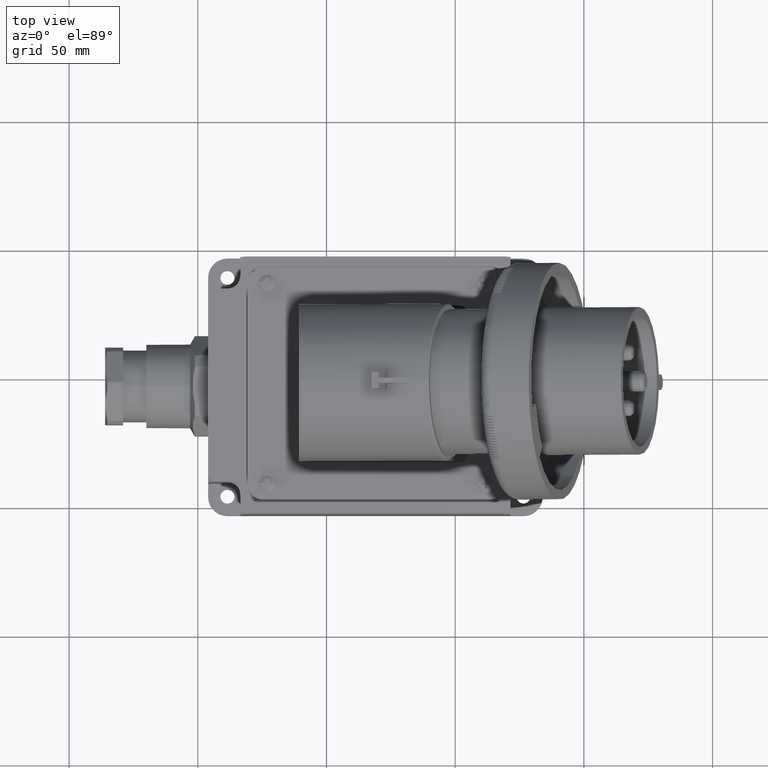
[diagram: clean part render]
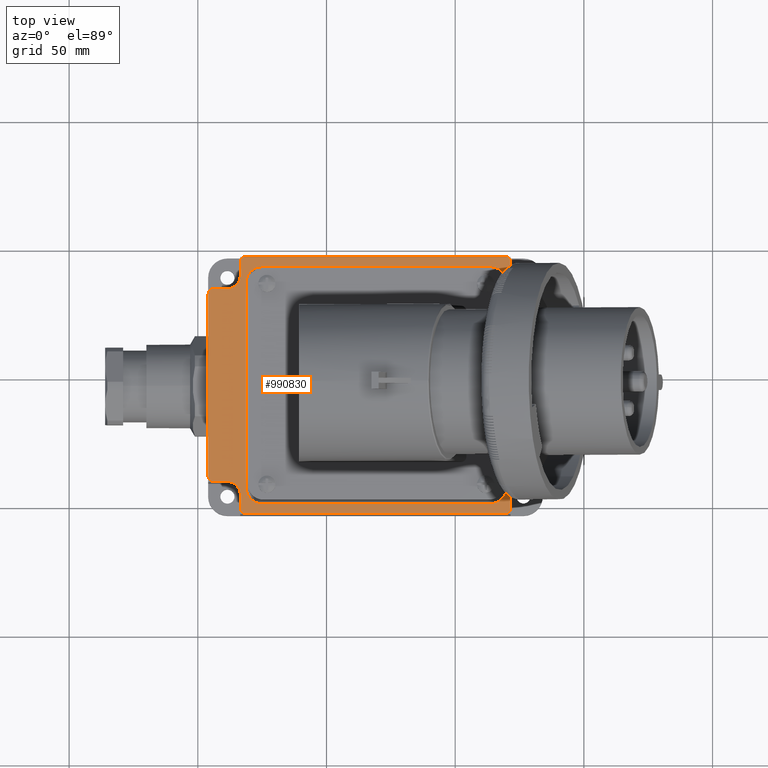
[diagram: same view with one face highlighted and labeled with its STEP entity id]
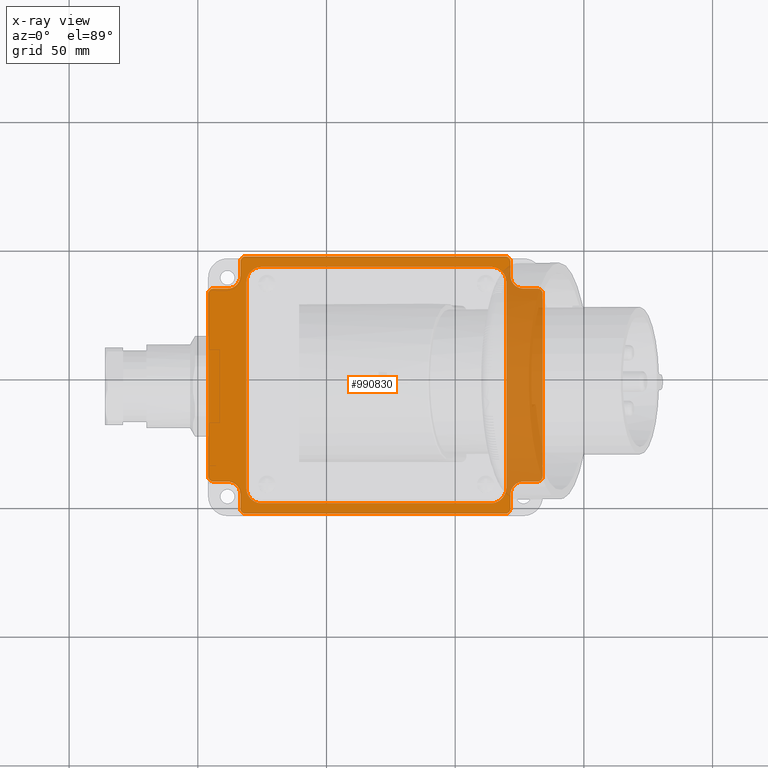
[diagram: x-ray of the same camera — body ghosted, the highlighted face saturated]
A machine part, top view. The second image highlights one B-rep face of the part: STEP entity #990830.
The next image is the same camera in x-ray: the body ghosted, the highlighted face saturated — about 35% of this face is hidden behind the body in this view.
In plain terms, the highlighted planar face has unit normal (0, 0, 1).
Its self-contained STEP definition (entity closure, byte-faithful):
#16690=CARTESIAN_POINT('',(69.,1.,51.8));
#16700=DIRECTION('',(-1.,0.,0.));
#16710=VECTOR('',#16700,1.);
#16720=LINE('',#16690,#16710);
#16730=CARTESIAN_POINT('',(113.851106427618,1.,51.8));
#16740=VERTEX_POINT('',#16730);
#16750=CARTESIAN_POINT('',(24.8511064276178,1.,51.8));
#16760=VERTEX_POINT('',#16750);
#16770=EDGE_CURVE('',#16740,#16760,#16720,.T.);
#17220=CARTESIAN_POINT('',(16.5,89.5,51.8));
#17230=VERTEX_POINT('',#17220);
#17260=CARTESIAN_POINT('',(11.5,89.5,51.8));
#17270=DIRECTION('',(0.,0.,1.));
#17280=DIRECTION('',(1.,0.,0.));
#17290=AXIS2_PLACEMENT_3D('',#17260,#17270,#17280);
#17300=CIRCLE('',#17290,5.);
#17310=CARTESIAN_POINT('',(11.5,84.5,51.8));
#17320=VERTEX_POINT('',#17310);
#17330=EDGE_CURVE('',#17320,#17230,#17300,.T.);
#17660=CARTESIAN_POINT('',(69.,84.5,51.8));
#17670=DIRECTION('',(-1.,0.,0.));
#17680=VECTOR('',#17670,1.);
#17690=LINE('',#17660,#17680);
#17700=CARTESIAN_POINT('',(6.,84.5,51.8));
#17710=VERTEX_POINT('',#17700);
#17720=EDGE_CURVE('',#17320,#17710,#17690,.T.);
#18040=CARTESIAN_POINT('',(6.,82.5,51.8));
#18050=DIRECTION('',(0.,0.,-1.));
#18060=DIRECTION('',(-1.,0.,0.));
#18070=AXIS2_PLACEMENT_3D('',#18040,#18050,#18060);
#18080=CIRCLE('',#18070,2.);
#18090=CARTESIAN_POINT('',(4.,82.5,51.8));
#18100=VERTEX_POINT('',#18090);
#18110=EDGE_CURVE('',#18100,#17710,#18080,.T.);
#18440=CARTESIAN_POINT('',(4.,47.,51.8));
#18450=DIRECTION('',(0.,-1.,0.));
#18460=VECTOR('',#18450,1.);
#18470=LINE('',#18440,#18460);
#18480=CARTESIAN_POINT('',(4.,11.5,51.8));
#18490=VERTEX_POINT('',#18480);
#18500=EDGE_CURVE('',#18100,#18490,#18470,.T.);
#18820=CARTESIAN_POINT('',(6.,11.5,51.8));
#18830=DIRECTION('',(0.,0.,1.));
#18840=DIRECTION('',(1.,0.,0.));
#18850=AXIS2_PLACEMENT_3D('',#18820,#18830,#18840);
#18860=CIRCLE('',#18850,2.);
#18870=CARTESIAN_POINT('',(6.,9.5,51.8));
#18880=VERTEX_POINT('',#18870);
#18890=EDGE_CURVE('',#18490,#18880,#18860,.T.);
#19220=CARTESIAN_POINT('',(69.,9.5,51.8));
#19230=DIRECTION('',(1.,0.,0.));
#19240=VECTOR('',#19230,1.);
#19250=LINE('',#19220,#19240);
#19260=CARTESIAN_POINT('',(11.5,9.5,51.8));
#19270=VERTEX_POINT('',#19260);
#19280=EDGE_CURVE('',#18880,#19270,#19250,.T.);
#19600=CARTESIAN_POINT('',(11.5,4.5,51.8));
#19610=DIRECTION('',(0.,0.,1.));
#19620=DIRECTION('',(1.,0.,0.));
#19630=AXIS2_PLACEMENT_3D('',#19600,#19610,#19620);
#19640=CIRCLE('',#19630,5.);
#19650=CARTESIAN_POINT('',(16.5,4.5,51.8));
#19660=VERTEX_POINT('',#19650);
#19670=EDGE_CURVE('',#19660,#19270,#19640,.T.);
#20000=CARTESIAN_POINT('',(16.5,47.,51.8));
#20010=DIRECTION('',(0.,-1.,0.));
#20020=VECTOR('',#20010,1.);
#20030=LINE('',#20000,#20020);
#20040=CARTESIAN_POINT('',(16.5,-1.,51.8));
#20050=VERTEX_POINT('',#20040);
#20060=EDGE_CURVE('',#19660,#20050,#20030,.T.);
#20380=CARTESIAN_POINT('',(18.5,-1.,51.8));
#20390=DIRECTION('',(0.,0.,-1.));
#20400=DIRECTION('',(-1.,0.,0.));
#20410=AXIS2_PLACEMENT_3D('',#20380,#20390,#20400);
#20420=CIRCLE('',#20410,2.);
#20430=CARTESIAN_POINT('',(18.5,-3.,51.8));
#20440=VERTEX_POINT('',#20430);
#20450=EDGE_CURVE('',#20440,#20050,#20420,.T.);
#20780=CARTESIAN_POINT('',(69.,-3.,51.8));
#20790=DIRECTION('',(1.,0.,0.));
#20800=VECTOR('',#20790,1.);
#20810=LINE('',#20780,#20800);
#20820=CARTESIAN_POINT('',(119.5,-3.,51.8));
#20830=VERTEX_POINT('',#20820);
#20840=EDGE_CURVE('',#20440,#20830,#20810,.T.);
#21160=CARTESIAN_POINT('',(119.5,-1.,51.8));
#21170=DIRECTION('',(0.,0.,1.));
#21180=DIRECTION('',(1.,0.,0.));
#21190=AXIS2_PLACEMENT_3D('',#21160,#21170,#21180);
#21200=CIRCLE('',#21190,2.);
#21210=CARTESIAN_POINT('',(121.5,-1.,51.8));
#21220=VERTEX_POINT('',#21210);
#21230=EDGE_CURVE('',#20830,#21220,#21200,.T.);
#21560=CARTESIAN_POINT('',(121.5,47.,51.8));
#21570=DIRECTION('',(0.,1.,0.));
#21580=VECTOR('',#21570,1.);
#21590=LINE('',#21560,#21580);
#21600=CARTESIAN_POINT('',(121.5,4.5,51.8));
#21610=VERTEX_POINT('',#21600);
#21620=EDGE_CURVE('',#21220,#21610,#21590,.T.);
#21940=CARTESIAN_POINT('',(126.5,4.5,51.8));
#21950=DIRECTION('',(0.,0.,-1.));
#21960=DIRECTION('',(-1.,0.,0.));
#21970=AXIS2_PLACEMENT_3D('',#21940,#21950,#21960);
#21980=CIRCLE('',#21970,5.);
#21990=CARTESIAN_POINT('',(126.5,9.5,51.8));
#22000=VERTEX_POINT('',#21990);
#22010=EDGE_CURVE('',#21610,#22000,#21980,.T.);
#22340=CARTESIAN_POINT('',(69.,9.5,51.8));
#22350=DIRECTION('',(1.,0.,0.));
#22360=VECTOR('',#22350,1.);
#22370=LINE('',#22340,#22360);
#22380=CARTESIAN_POINT('',(132.,9.5,51.8));
#22390=VERTEX_POINT('',#22380);
#22400=EDGE_CURVE('',#22000,#22390,#22370,.T.);
#22720=CARTESIAN_POINT('',(132.,11.5,51.8));
#22730=DIRECTION('',(0.,0.,-1.));
#22740=DIRECTION('',(-1.,0.,0.));
#22750=AXIS2_PLACEMENT_3D('',#22720,#22730,#22740);
#22760=CIRCLE('',#22750,2.);
#22770=CARTESIAN_POINT('',(134.,11.5,51.8));
#22780=VERTEX_POINT('',#22770);
#22790=EDGE_CURVE('',#22780,#22390,#22760,.T.);
#23120=CARTESIAN_POINT('',(134.,47.,51.8));
#23130=DIRECTION('',(0.,1.,0.));
#23140=VECTOR('',#23130,1.);
#23150=LINE('',#23120,#23140);
#23160=CARTESIAN_POINT('',(134.,82.5,51.8));
#23170=VERTEX_POINT('',#23160);
#23180=EDGE_CURVE('',#22780,#23170,#23150,.T.);
#23500=CARTESIAN_POINT('',(132.,82.5,51.8));
#23510=DIRECTION('',(0.,0.,1.));
#23520=DIRECTION('',(1.,0.,0.));
#23530=AXIS2_PLACEMENT_3D('',#23500,#23510,#23520);
#23540=CIRCLE('',#23530,2.);
#23550=CARTESIAN_POINT('',(132.,84.5,51.8));
#23560=VERTEX_POINT('',#23550);
#23570=EDGE_CURVE('',#23170,#23560,#23540,.T.);
#23900=CARTESIAN_POINT('',(69.,84.5,51.8));
#23910=DIRECTION('',(-1.,0.,0.));
#23920=VECTOR('',#23910,1.);
#23930=LINE('',#23900,#23920);
#23940=CARTESIAN_POINT('',(126.5,84.5,51.8));
#23950=VERTEX_POINT('',#23940);
#23960=EDGE_CURVE('',#23560,#23950,#23930,.T.);
#24280=CARTESIAN_POINT('',(126.5,89.5,51.8));
#24290=DIRECTION('',(0.,0.,-1.));
#24300=DIRECTION('',(-1.,0.,0.));
#24310=AXIS2_PLACEMENT_3D('',#24280,#24290,#24300);
#24320=CIRCLE('',#24310,5.);
#24330=CARTESIAN_POINT('',(121.5,89.5,51.8));
#24340=VERTEX_POINT('',#24330);
#24350=EDGE_CURVE('',#23950,#24340,#24320,.T.);
#24680=CARTESIAN_POINT('',(121.5,47.,51.8));
#24690=DIRECTION('',(3.94745964311167E-16,1.,0.));
#24700=VECTOR('',#24690,1.);
#24710=LINE('',#24680,#24700);
#24720=CARTESIAN_POINT('',(121.5,95.,51.8));
#24730=VERTEX_POINT('',#24720);
#24740=EDGE_CURVE('',#24340,#24730,#24710,.T.);
#25110=CARTESIAN_POINT('',(119.5,97.,51.8));
#25120=VERTEX_POINT('',#25110);
#25150=CARTESIAN_POINT('',(69.,97.,51.8));
#25160=DIRECTION('',(-1.,0.,0.));
#25170=VECTOR('',#25160,1.);
#25180=LINE('',#25150,#25170);
#25190=CARTESIAN_POINT('',(18.5,97.,51.8));
#25200=VERTEX_POINT('',#25190);
#25210=EDGE_CURVE('',#25120,#25200,#25180,.T.);
#25530=CARTESIAN_POINT('',(18.5,95.,51.8));
#25540=DIRECTION('',(0.,0.,1.));
#25550=DIRECTION('',(1.,0.,0.));
#25560=AXIS2_PLACEMENT_3D('',#25530,#25540,#25550);
#25570=CIRCLE('',#25560,2.);
#25580=CARTESIAN_POINT('',(16.5,95.,51.8));
#25590=VERTEX_POINT('',#25580);
#25600=EDGE_CURVE('',#25200,#25590,#25570,.T.);
#25930=CARTESIAN_POINT('',(16.5,47.,51.8));
#25940=DIRECTION('',(3.94745964311167E-16,-1.,0.));
#25950=VECTOR('',#25940,1.);
#25960=LINE('',#25930,#25950);
#25970=EDGE_CURVE('',#25590,#17230,#25960,.T.);
#989720=CARTESIAN_POINT('',(119.5,95.,51.8));
#989730=DIRECTION('',(0.,0.,-1.));
#989740=DIRECTION('',(-1.,0.,0.));
#989750=AXIS2_PLACEMENT_3D('',#989720,#989730,#989740);
#989760=CIRCLE('',#989750,2.);
#989770=EDGE_CURVE('',#25120,#24730,#989760,.T.);
#989910=CARTESIAN_POINT('',(69.,47.,51.8));
#989920=DIRECTION('',(0.,0.,1.));
#989930=DIRECTION('',(1.,0.,0.));
#989940=AXIS2_PLACEMENT_3D('',#989910,#989920,#989930);
#989950=PLANE('',#989940);
#989960=CARTESIAN_POINT('',(113.851106427618,7.,51.8));
#989970=DIRECTION('',(0.,0.,1.));
#989980=DIRECTION('',(1.,0.,0.));
#989990=AXIS2_PLACEMENT_3D('',#989960,#989970,#989980);
#990000=CIRCLE('',#989990,6.);
#990010=CARTESIAN_POINT('',(119.851106427618,7.,51.8));
#990020=VERTEX_POINT('',#990010);
#990030=EDGE_CURVE('',#16740,#990020,#990000,.T.);
#990040=ORIENTED_EDGE('',*,*,#990030,.F.);
#990050=CARTESIAN_POINT('',(119.851106427618,47.,51.8));
#990060=DIRECTION('',(0.,-1.,0.));
#990070=VECTOR('',#990060,1.);
#990080=LINE('',#990050,#990070);
#990090=CARTESIAN_POINT('',(119.851106427618,87.,51.8));
#990100=VERTEX_POINT('',#990090);
#990110=EDGE_CURVE('',#990100,#990020,#990080,.T.);
#990120=ORIENTED_EDGE('',*,*,#990110,.T.);
#990130=CARTESIAN_POINT('',(113.851106427618,87.,51.8));
#990140=DIRECTION('',(0.,0.,1.));
#990150=DIRECTION('',(1.,0.,0.));
#990160=AXIS2_PLACEMENT_3D('',#990130,#990140,#990150);
#990170=CIRCLE('',#990160,6.);
#990180=CARTESIAN_POINT('',(113.851106427618,93.,51.8));
#990190=VERTEX_POINT('',#990180);
#990200=EDGE_CURVE('',#990100,#990190,#990170,.T.);
#990210=ORIENTED_EDGE('',*,*,#990200,.F.);
#990220=CARTESIAN_POINT('',(69.,93.,51.8));
#990230=DIRECTION('',(1.,0.,0.));
#990240=VECTOR('',#990230,1.);
#990250=LINE('',#990220,#990240);
#990260=CARTESIAN_POINT('',(24.8511064276178,93.,51.8));
#990270=VERTEX_POINT('',#990260);
#990280=EDGE_CURVE('',#990270,#990190,#990250,.T.);
#990290=ORIENTED_EDGE('',*,*,#990280,.T.);
#990300=CARTESIAN_POINT('',(24.8511064276178,87.,51.8));
#990310=DIRECTION('',(0.,0.,-1.));
#990320=DIRECTION('',(-1.,0.,0.));
#990330=AXIS2_PLACEMENT_3D('',#990300,#990310,#990320);
#990340=CIRCLE('',#990330,6.);
#990350=CARTESIAN_POINT('',(18.8511064276178,87.,51.8));
#990360=VERTEX_POINT('',#990350);
#990370=EDGE_CURVE('',#990360,#990270,#990340,.T.);
#990380=ORIENTED_EDGE('',*,*,#990370,.T.);
#990390=CARTESIAN_POINT('',(18.8511064276178,47.,51.8));
#990400=DIRECTION('',(0.,1.,0.));
#990410=VECTOR('',#990400,1.);
#990420=LINE('',#990390,#990410);
#990430=CARTESIAN_POINT('',(18.8511064276178,7.,51.8));
#990440=VERTEX_POINT('',#990430);
#990450=EDGE_CURVE('',#990440,#990360,#990420,.T.);
#990460=ORIENTED_EDGE('',*,*,#990450,.T.);
#990470=CARTESIAN_POINT('',(24.8511064276178,7.,51.8));
#990480=DIRECTION('',(0.,0.,1.));
#990490=DIRECTION('',(1.,0.,0.));
#990500=AXIS2_PLACEMENT_3D('',#990470,#990480,#990490);
#990510=CIRCLE('',#990500,6.);
#990520=EDGE_CURVE('',#990440,#16760,#990510,.T.);
#990530=ORIENTED_EDGE('',*,*,#990520,.F.);
#990540=ORIENTED_EDGE('',*,*,#16770,.T.);
#990550=EDGE_LOOP('',(#990540,#990530,#990460,#990380,#990290,#990210,
#990120,#990040));
#990560=FACE_BOUND('',#990550,.T.);
#990570=ORIENTED_EDGE('',*,*,#19280,.T.);
#990580=ORIENTED_EDGE('',*,*,#18890,.T.);
#990590=ORIENTED_EDGE('',*,*,#18500,.T.);
#990600=ORIENTED_EDGE('',*,*,#18110,.F.);
#990610=ORIENTED_EDGE('',*,*,#17720,.T.);
#990620=ORIENTED_EDGE('',*,*,#17330,.F.);
#990630=ORIENTED_EDGE('',*,*,#25970,.T.);
#990640=ORIENTED_EDGE('',*,*,#25600,.T.);
#990650=ORIENTED_EDGE('',*,*,#25210,.T.);
#990660=ORIENTED_EDGE('',*,*,#989770,.F.);
#990670=ORIENTED_EDGE('',*,*,#24740,.T.);
#990680=ORIENTED_EDGE('',*,*,#24350,.T.);
#990690=ORIENTED_EDGE('',*,*,#23960,.T.);
#990700=ORIENTED_EDGE('',*,*,#23570,.T.);
#990710=ORIENTED_EDGE('',*,*,#23180,.T.);
#990720=ORIENTED_EDGE('',*,*,#22790,.F.);
#990730=ORIENTED_EDGE('',*,*,#22400,.T.);
#990740=ORIENTED_EDGE('',*,*,#22010,.T.);
#990750=ORIENTED_EDGE('',*,*,#21620,.T.);
#990760=ORIENTED_EDGE('',*,*,#21230,.T.);
#990770=ORIENTED_EDGE('',*,*,#20840,.T.);
#990780=ORIENTED_EDGE('',*,*,#20450,.F.);
#990790=ORIENTED_EDGE('',*,*,#20060,.T.);
#990800=ORIENTED_EDGE('',*,*,#19670,.F.);
#990810=EDGE_LOOP('',(#990800,#990790,#990780,#990770,#990760,#990750,
#990740,#990730,#990720,#990710,#990700,#990690,#990680,#990670,#990660,
#990650,#990640,#990630,#990620,#990610,#990600,#990590,#990580,#990570)
);
#990820=FACE_OUTER_BOUND('',#990810,.T.);
#990830=ADVANCED_FACE('',(#990560,#990820),#989950,.T.);